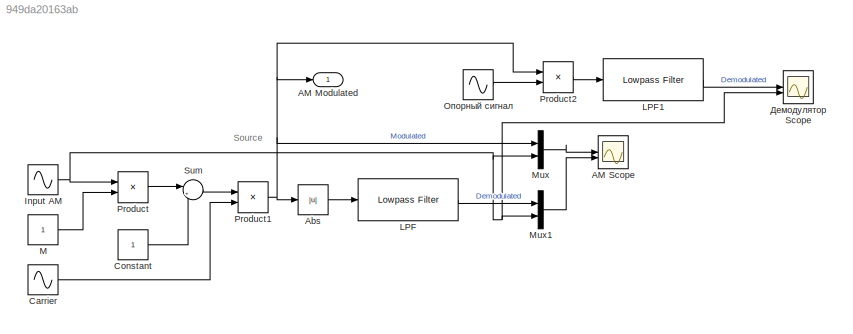
MODEL slx_949da20163ab
KIND model
CONFIG AbsTol = auto
CONFIG EnableMultiTasking = off
CONFIG FixedStep = auto
CONFIG MaxStep = auto
CONFIG MinStep = auto
CONFIG RelTol = 1e-3
CONFIG SampleTimeConstraint = Unconstrained
CONFIG SolverName = VariableStepAuto
CONFIG StartTime = 0.0
CONFIG StopTime = 1
BLOCK [Outport] AM Modulated
BLOCK [Scope] AM Scope
  ActiveDisplayString = 2
  ActiveDisplayYMaximum = 1
  ActiveDisplayYMinimum = -1
  Floating = off
  GraphicalSettings = {"Style":{"BackgroundColor":[1,1,1],"AxesColor":[1,1,1],"LabelsColor":[0.14901960784313725,0.14901960784313725,0.14901960784313725],"PreserveColors":false,"Visible":[true,true,true,true],"LineStyle":["-","-","-","-"],"LineWidth":[1.5,1.5,1.5,1.5],"BarWidth":[0.9,0.9,0.9,0.9],"LineColor":[[0.28627450980392155,0.8588235294117647,0.25098039215686274],[0.7529411764705882,0.3607843137254902,0.984313725...<+2556ch>
  LayoutDimensionsString = [2,1]
  MultipleDisplayCache = [{"MaxYLimMag":1,"MaxYLimReal":1,"MinYLimMag":0,"MinYLimReal":-1,"PlotAsMagnitudePhase":false,"ShowGrid":true,"ShowLegend":true,"Title":"%<SignalLabel>","YLabel":""},{"MaxYLimMag":1,"MaxYLimReal":1,"MinYLimMag":0,"MinYLimReal":-1,"PlotAsMagnitudePhase":false,"ShowGrid":true,"ShowLegend":true,"Title":"%<SignalLabel>","YLabel":""}]
  NumInputPorts = 2
  ScopeFrameLocation = window
  ShowLegend = on
  WasSavedAsWebScope = on
  WindowPosition = [1.000000,49.000000,1536.000000,793.000000,]
BLOCK [Abs] Abs
  SaturateOnIntegerOverflow = off
BLOCK [Sin] Carrier
  Frequency = 100*2*pi
  SampleTime = 0.0001
BLOCK [Constant] Constant
BLOCK [Sin] Input AM
  Frequency = 2*2*pi
  SampleTime = 0.0001
BLOCK [Reference] LPF  REF=dspfdesign/Lowpass Filter
  SourceBlock = dspfdesign/Lowpass Filter
  SourceType = dsp.simulink.LowpassFilter
BLOCK [Reference] LPF1  REF=dspfdesign/Lowpass Filter
  SourceBlock = dspfdesign/Lowpass Filter
  SourceType = dsp.simulink.LowpassFilter
BLOCK [Constant] M
BLOCK [Mux] Mux
  DisplayOption = bar
  Inputs = 2
BLOCK [Mux] Mux1
  DisplayOption = bar
  Inputs = 2
BLOCK [Product] Product
BLOCK [Product] Product1
BLOCK [Product] Product2
BLOCK [Sum] Sum
  Inputs = |++
BLOCK [Scope] Демодулятор Scope
  ActiveDisplayString = 2
  ActiveDisplayYMaximum = 1.2499999999999212
  ActiveDisplayYMinimum = -1.2499999999998153
  DataLoggingVariableName = ScopeData1
  Floating = off
  GraphicalSettings = {"Style":{"BackgroundColor":[1,1,1],"AxesColor":[1,1,1],"LabelsColor":[0.14901960784313725,0.14901960784313725,0.14901960784313725],"PreserveColors":false,"Visible":[true,true],"LineStyle":["-","-"],"LineWidth":[1.5,1.5],"BarWidth":[0.9,0.9],"LineColor":[[0.28627450980392155,0.8588235294117647,0.25098039215686274],[0.7529411764705882,0.3607843137254902,0.984313725490196]],"LineFaceAlpha":[1,1],"Li...<+2297ch>
  LayoutDimensionsString = [2,1]
  MultipleDisplayCache = [{"MaxYLimMag":1.0156875860325514,"MaxYLimReal":1.0156875860325065,"MinYLimMag":0,"MinYLimReal":-1.0156875860325514,"PlotAsMagnitudePhase":false,"ShowGrid":true,"ShowLegend":true,"Title":"%<SignalLabel>","YLabel":""},{"MaxYLimMag":1.2499999999999212,"MaxYLimReal":1.2499999999999212,"MinYLimMag":0,"MinYLimReal":-1.2499999999998153,"PlotAsMagnitudePhase":false,"ShowGrid":true,"ShowLegend":true,"Titl...<+33ch>
  NumInputPorts = 2
  ScopeFrameLocation = window
  ShowLegend = on
  WasSavedAsWebScope = on
  WindowPosition = [0.000000,36.000000,1536.000000,793.000000,]
BLOCK [Sin] Опорный сигнал
  Frequency = 100*2*pi
  SampleTime = 0.0001
ANNOTATION (root): Source
LINE Abs:1 -> LPF:1
LINE Carrier:1 -> Product1:2
LINE Constant:1 -> Sum:2
NET Input AM:1 -> Mux1:2, Mux:2, Product:1, Демодулятор Scope:2
LINE LPF1:1 -> Демодулятор Scope:1
LINE LPF:1 -> Mux1:1
LINE M:1 -> Product:2
LINE Mux1:1 -> AM Scope:2
LINE Mux:1 -> AM Scope:1
NET Product1:1 -> AM Modulated:1, Abs:1, Mux:1, Product2:1
LINE Product2:1 -> LPF1:1
LINE Product:1 -> Sum:1
LINE Sum:1 -> Product1:1
LINE Опорный сигнал:1 -> Product2:2
note: NET lines group one-source signal fan-out (src -> all destinations, sorted); 1:1 wires keep LINE
